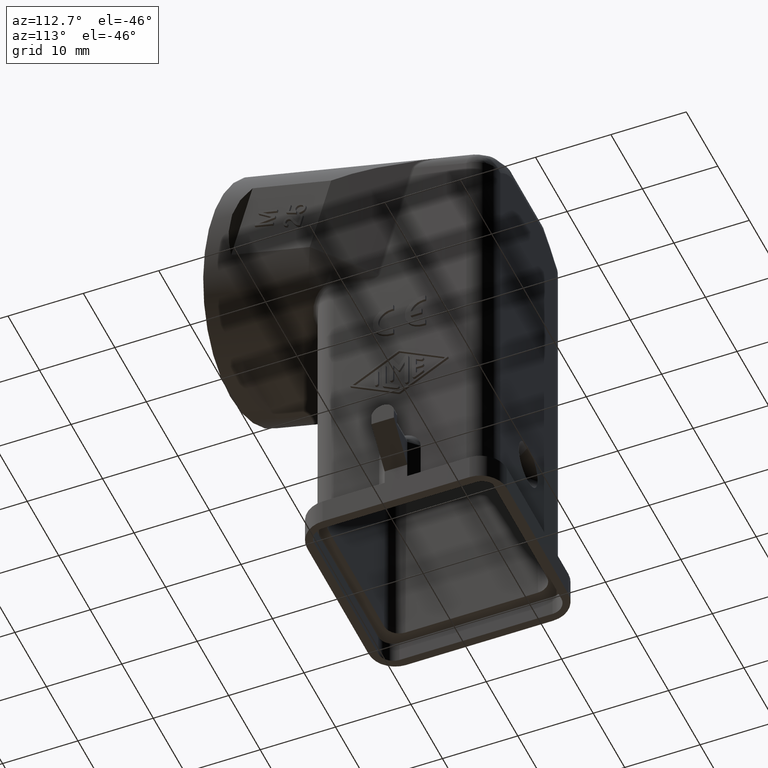
[diagram: clean part render]
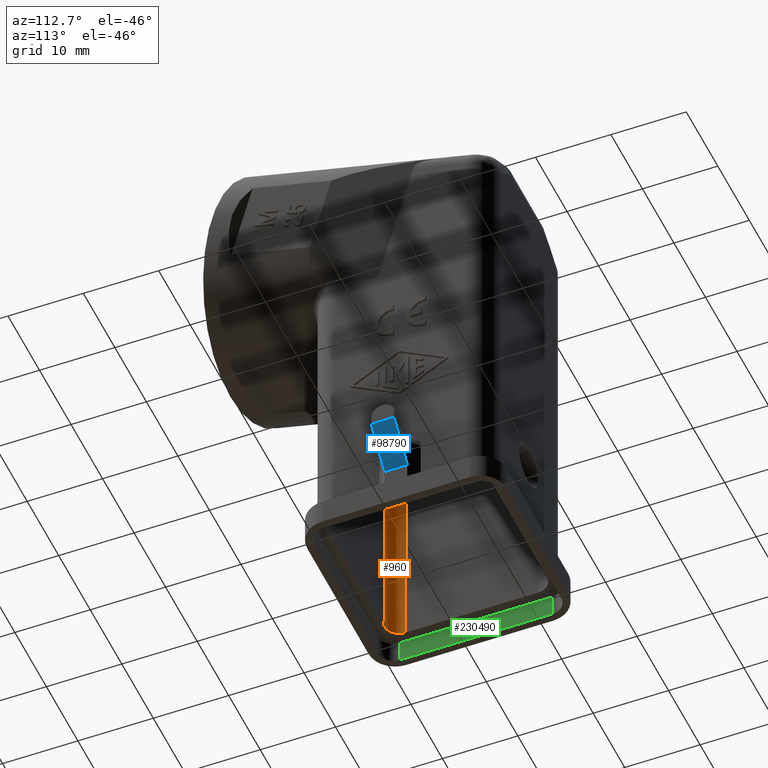
[diagram: same view with three faces highlighted in distinct colors, each labeled with its STEP entity id]
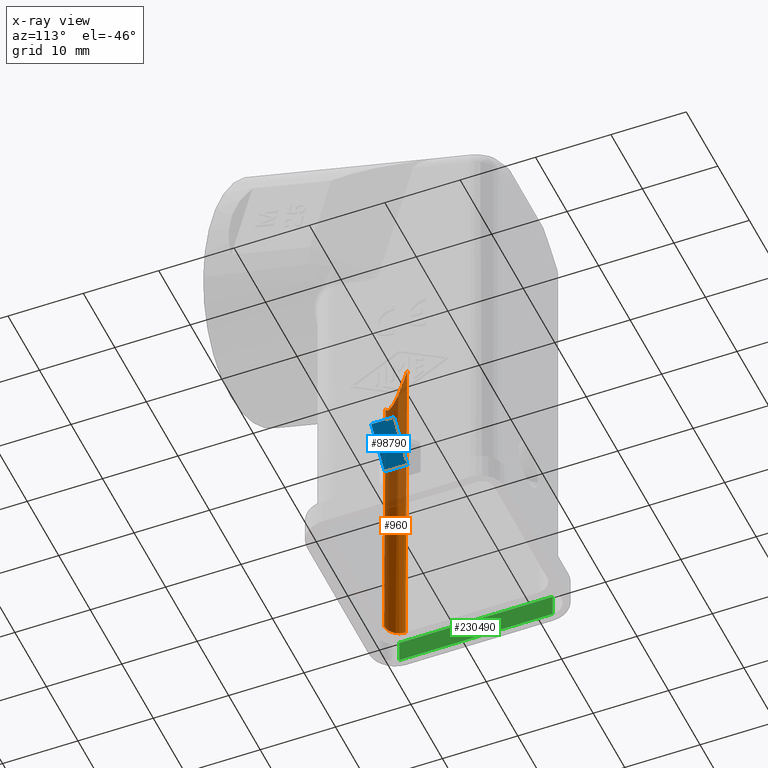
[diagram: x-ray of the same camera — body ghosted, the three highlighted faces saturated]
A machine part, auxiliary view with three faces highlighted in distinct colors.
The next image is the same camera in x-ray (body ghosted, the three faces saturated) — at least one of them is partly hidden behind the body in this view.
Their STEP definitions:

[orange] entity #960 — the highlighted cylindrical surface (edge-blend (fillet) strip) has radius 2 mm, axis along (0.0087, 0.0087, 0.9999).
#550=CARTESIAN_POINT('',(-8.82610444660084,22.459525404943,-3.5));
#560=DIRECTION('',(0.00872620324394422,0.00872620324394422,
0.99992385047757));
#570=DIRECTION('',(0.999961923064171,0.,-0.00872653549837393));
#580=AXIS2_PLACEMENT_3D('',#550,#560,#570);
#590=CYLINDRICAL_SURFACE('',#580,2.);
#600=CARTESIAN_POINT('',(-8.79992384322857,22.4857060083153,-0.5));
#610=DIRECTION('',(0.,0.,-1.));
#620=DIRECTION('',(0.707106781186733,0.707106781186362,0.));
#630=AXIS2_PLACEMENT_3D('',#600,#610,#620);
#640=ELLIPSE('',#630,2.00015231064324,2.);
#650=CARTESIAN_POINT('',(-8.8000761538717,20.4856298515438,-0.5));
#660=VERTEX_POINT('',#650);
#670=CARTESIAN_POINT('',(-10.8,22.4855536976721,-0.5));
#680=VERTEX_POINT('',#670);
#690=EDGE_CURVE('',#660,#680,#640,.T.);
#700=ORIENTED_EDGE('',*,*,#690,.T.);
#710=CARTESIAN_POINT('',(-8.82610444660084,20.4596015588146,
-3.48254692900325));
#720=DIRECTION('',(-0.00872620324394422,-0.00872620324394422,
-0.99992385047757));
#730=VECTOR('',#720,1.);
#740=LINE('',#710,#730);
#750=CARTESIAN_POINT('',(-8.47061268229241,20.8150933231231,
37.252774475187));
#760=VERTEX_POINT('',#750);
#770=EDGE_CURVE('',#760,#660,#740,.T.);
#780=ORIENTED_EDGE('',*,*,#770,.T.);
#790=CARTESIAN_POINT('',(-8.40312666412308,22.8825031874207,
44.9684531288149));
#800=DIRECTION('',(0.,0.965925826289068,-0.258819045102521));
#810=DIRECTION('',(0.00901327510306067,0.258808531772216,
0.965886590006211));
#820=AXIS2_PLACEMENT_3D('',#790,#800,#810);
#830=ELLIPSE('',#820,7.98816246738765,2.);
#840=CARTESIAN_POINT('',(-10.4032079485195,22.8823457491527,
44.9678655611996));
#850=VERTEX_POINT('',#840);
#860=EDGE_CURVE('',#760,#850,#830,.T.);
#870=ORIENTED_EDGE('',*,*,#860,.F.);
#880=CARTESIAN_POINT('',(-10.8260282927292,22.459525404943,
-3.48254692900325));
#890=DIRECTION('',(-0.00872620324394422,-0.00872620324394422,
-0.99992385047757));
#900=VECTOR('',#890,1.);
#910=LINE('',#880,#900);
#920=EDGE_CURVE('',#850,#680,#910,.T.);
#930=ORIENTED_EDGE('',*,*,#920,.F.);
#940=EDGE_LOOP('',(#930,#870,#780,#700));
#950=FACE_OUTER_BOUND('',#940,.T.);
#960=ADVANCED_FACE('',(#950),#590,.F.);

[blue] entity #98790 — the highlighted planar face has unit normal (0.7071, 0, -0.7071).
#91350=CARTESIAN_POINT('',(13.25,32.7856298515438,2.00000000000001));
#91360=VERTEX_POINT('',#91350);
#96380=CARTESIAN_POINT('',(17.5,32.7856298515438,6.25));
#96390=VERTEX_POINT('',#96380);
#96420=CARTESIAN_POINT('',(17.5,8.05923990385772E-16,6.25));
#96430=DIRECTION('',(4.60527994506155E-17,-1.,0.));
#96440=VECTOR('',#96430,1.);
#96450=LINE('',#96420,#96440);
#96460=CARTESIAN_POINT('',(17.5,29.7856298515438,6.25));
#96470=VERTEX_POINT('',#96460);
#96480=EDGE_CURVE('',#96390,#96470,#96450,.T.);
#98510=CARTESIAN_POINT('',(13.25,15.3376274515438,2.));
#98520=DIRECTION('',(0.707106781186547,3.25642467841543E-17,
-0.707106781186548));
#98530=DIRECTION('',(0.707106781186548,3.25642467841543E-17,
0.707106781186547));
#98540=AXIS2_PLACEMENT_3D('',#98510,#98520,#98530);
#98550=PLANE('',#98540);
#98560=ORIENTED_EDGE('',*,*,#96480,.T.);
#98570=CARTESIAN_POINT('',(1.49141663960644E-14,32.7856298515438,-11.25)
);
#98580=DIRECTION('',(0.707106781186548,4.47594004599601E-18,
0.707106781186547));
#98590=VECTOR('',#98580,1.);
#98600=LINE('',#98570,#98590);
#98610=EDGE_CURVE('',#91360,#96390,#98600,.T.);
#98620=ORIENTED_EDGE('',*,*,#98610,.T.);
#98630=CARTESIAN_POINT('',(13.25,6.10199592720656E-16,2.));
#98640=DIRECTION('',(-4.60527994506155E-17,1.,0.));
#98650=VECTOR('',#98640,1.);
#98660=LINE('',#98630,#98650);
#98670=CARTESIAN_POINT('',(13.25,29.7856298515438,2.00000000000001));
#98680=VERTEX_POINT('',#98670);
#98690=EDGE_CURVE('',#98680,#91360,#98660,.T.);
#98700=ORIENTED_EDGE('',*,*,#98690,.T.);
#98710=CARTESIAN_POINT('',(1.47645624989844E-14,29.7856298515438,-11.25)
);
#98720=DIRECTION('',(0.707106781186548,2.22167803118665E-16,
0.707106781186547));
#98730=VECTOR('',#98720,1.);
#98740=LINE('',#98710,#98730);
#98750=EDGE_CURVE('',#98680,#96470,#98740,.T.);
#98760=ORIENTED_EDGE('',*,*,#98750,.F.);
#98770=EDGE_LOOP('',(#98760,#98700,#98620,#98560));
#98780=FACE_OUTER_BOUND('',#98770,.T.);
#98790=ADVANCED_FACE('',(#98780),#98550,.T.);

[green] entity #230490 — the highlighted planar face has unit normal (1, -0, 0).
#49900=CARTESIAN_POINT('',(-12.15,21.1356298515438,-3.5));
#49910=VERTEX_POINT('',#49900);
#49960=CARTESIAN_POINT('',(-12.15,18.7856298515438,-3.5));
#49970=DIRECTION('',(4.60527994506155E-17,1.,0.));
#49980=VECTOR('',#49970,1.);
#49990=LINE('',#49960,#49980);
#50000=CARTESIAN_POINT('',(-12.15,41.4356298515438,-3.5));
#50010=VERTEX_POINT('',#50000);
#50020=EDGE_CURVE('',#49910,#50010,#49990,.T.);
#71690=CARTESIAN_POINT('',(-12.15,41.4356298515438,-0.5));
#71700=VERTEX_POINT('',#71690);
#71750=CARTESIAN_POINT('',(-12.15,5.59541513324979E-16,-0.5));
#71760=DIRECTION('',(4.60527994506155E-17,1.,0.));
#71770=VECTOR('',#71760,1.);
#71780=LINE('',#71750,#71770);
#71790=CARTESIAN_POINT('',(-12.15,21.1356298515438,-0.5));
#71800=VERTEX_POINT('',#71790);
#71810=EDGE_CURVE('',#71800,#71700,#71780,.T.);
#227560=CARTESIAN_POINT('',(-12.15,41.4356298515438,-3.5));
#227570=DIRECTION('',(0.,0.,-1.));
#227580=VECTOR('',#227570,1.);
#227590=LINE('',#227560,#227580);
#227600=EDGE_CURVE('',#71700,#50010,#227590,.T.);
#229800=CARTESIAN_POINT('',(-12.15,21.1356298515438,-3.5));
#229810=DIRECTION('',(0.,0.,-1.));
#229820=VECTOR('',#229810,1.);
#229830=LINE('',#229800,#229820);
#229840=EDGE_CURVE('',#71800,#49910,#229830,.T.);
#230380=CARTESIAN_POINT('',(-12.15,43.7856298515438,-3.5));
#230390=DIRECTION('',(1.,-4.60527994506155E-17,0.));
#230400=DIRECTION('',(-4.60527994506155E-17,-1.,0.));
#230410=AXIS2_PLACEMENT_3D('',#230380,#230390,#230400);
#230420=PLANE('',#230410);
#230430=ORIENTED_EDGE('',*,*,#229840,.T.);
#230440=ORIENTED_EDGE('',*,*,#71810,.F.);
#230450=ORIENTED_EDGE('',*,*,#227600,.F.);
#230460=ORIENTED_EDGE('',*,*,#50020,.T.);
#230470=EDGE_LOOP('',(#230460,#230450,#230440,#230430));
#230480=FACE_OUTER_BOUND('',#230470,.T.);
#230490=ADVANCED_FACE('',(#230480),#230420,.T.);